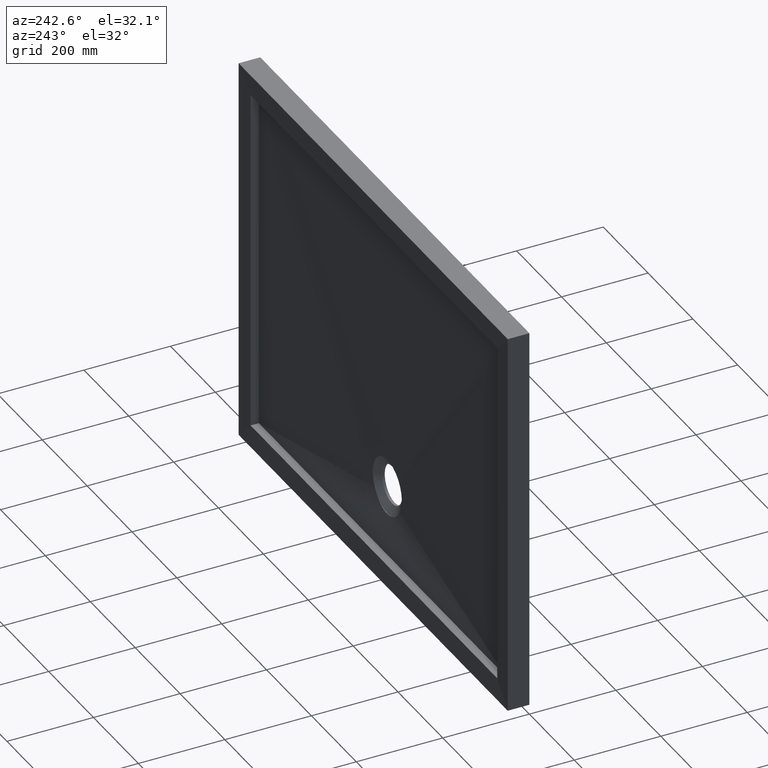
[diagram: clean part render]
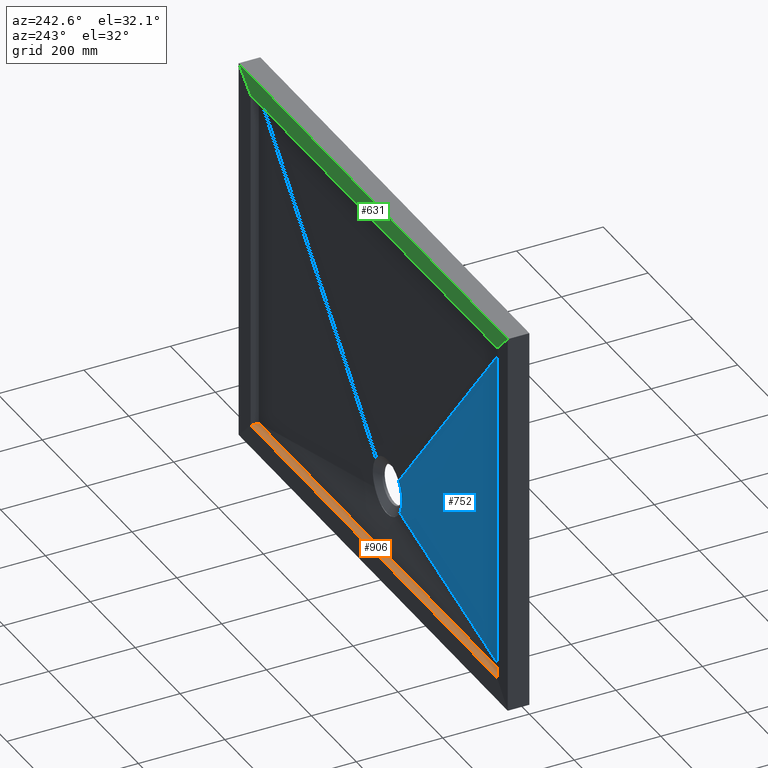
[diagram: same view with three faces highlighted in distinct colors, each labeled with its STEP entity id]
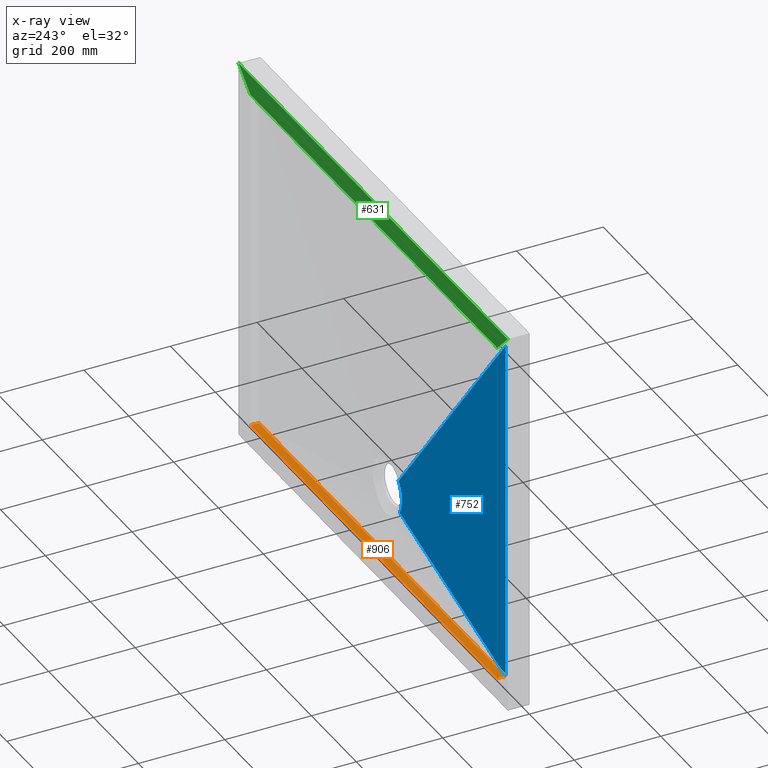
[diagram: x-ray of the same camera — body ghosted, the three highlighted faces saturated]
A machine part, auxiliary view with three faces highlighted in distinct colors.
The next image is the same camera in x-ray (body ghosted, the three faces saturated) — at least one of them is partly hidden behind the body in this view.
Their STEP definitions:

[orange] entity #906 — the highlighted planar face has unit normal (-0, 0, -1).
#41 = VECTOR ( 'NONE', #803, 1000.000000000000000 ) ;
#49 = ORIENTED_EDGE ( 'NONE', *, *, #1020, .T. ) ;
#60 = CARTESIAN_POINT ( 'NONE',  ( -549.9999999999997700, 48.25745360236166400, -400.0000000000000600 ) ) ;
#65 = VERTEX_POINT ( 'NONE', #918 ) ;
#79 = CARTESIAN_POINT ( 'NONE',  ( -183.3333333333332300, 28.99999999999991500, -400.0000000000000600 ) ) ;
#115 = FACE_OUTER_BOUND ( 'NONE', #347, .T. ) ;
#145 = DIRECTION ( 'NONE',  ( -0.0000000000000000000, 0.0000000000000000000, -1.000000000000000000 ) ) ;
#147 = DIRECTION ( 'NONE',  ( -1.000000000000000000, 0.0000000000000000000, 0.0000000000000000000 ) ) ;
#148 = PLANE ( 'NONE',  #372 ) ;
#152 = EDGE_CURVE ( 'NONE', #1026, #65, #510, .T. ) ;
#166 = CARTESIAN_POINT ( 'NONE',  ( 550.0000000000000000, -1360.147050873544200, -400.0000000000000600 ) ) ;
#302 = CARTESIAN_POINT ( 'NONE',  ( 550.0000000000000000, 29.00000000000000000, -400.0000000000000600 ) ) ;
#314 = DIRECTION ( 'NONE',  ( -1.000000000000000000, 0.0000000000000000000, 0.0000000000000000000 ) ) ;
#347 = EDGE_LOOP ( 'NONE', ( #789, #49, #958, #882 ) ) ;
#372 = AXIS2_PLACEMENT_3D ( 'NONE', #166, #145, #147 ) ;
#390 = VERTEX_POINT ( 'NONE', #694 ) ;
#399 = CARTESIAN_POINT ( 'NONE',  ( 550.0000000000000000, 29.00000000000000000, -400.0000000000000600 ) ) ;
#415 = CARTESIAN_POINT ( 'NONE',  ( -549.9999999999997700, 48.25745360236166400, -400.0000000000000600 ) ) ;
#447 = EDGE_CURVE ( 'NONE', #390, #950, #663, .T. ) ;
#466 = EDGE_CURVE ( 'NONE', #390, #1026, #557, .T. ) ;
#510 = LINE ( 'NONE', #845, #944 ) ;
#557 = B_SPLINE_CURVE_WITH_KNOTS ( 'NONE', 3,
 ( #680, #79, #874, #302 ),
 .UNSPECIFIED., .F., .F.,
 ( 4, 4 ),
 ( 0.0000000000000000000, 1.000000000000000000 ),
 .UNSPECIFIED. ) ;
#605 = DIRECTION ( 'NONE',  ( -0.0000000000000000000, 1.000000000000000000, -0.0000000000000000000 ) ) ;
#628 = LINE ( 'NONE', #415, #655 ) ;
#655 = VECTOR ( 'NONE', #314, 1000.000000000000000 ) ;
#663 = LINE ( 'NONE', #1043, #41 ) ;
#680 = CARTESIAN_POINT ( 'NONE',  ( -549.9999999999997700, 29.00000000000000000, -400.0000000000000600 ) ) ;
#694 = CARTESIAN_POINT ( 'NONE',  ( -549.9999999999997700, 29.00000000000000000, -400.0000000000000600 ) ) ;
#789 = ORIENTED_EDGE ( 'NONE', *, *, #152, .T. ) ;
#803 = DIRECTION ( 'NONE',  ( -0.0000000000000000000, 1.000000000000000000, -0.0000000000000000000 ) ) ;
#845 = CARTESIAN_POINT ( 'NONE',  ( 550.0000000000000000, -1360.147050873544200, -400.0000000000000600 ) ) ;
#874 = CARTESIAN_POINT ( 'NONE',  ( 183.3333333333334600, 28.99999999999991500, -400.0000000000000600 ) ) ;
#882 = ORIENTED_EDGE ( 'NONE', *, *, #466, .T. ) ;
#906 = ADVANCED_FACE ( 'NONE', ( #115 ), #148, .F. ) ;
#918 = CARTESIAN_POINT ( 'NONE',  ( 550.0000000000000000, 48.25745360236166400, -400.0000000000000600 ) ) ;
#944 = VECTOR ( 'NONE', #605, 1000.000000000000000 ) ;
#950 = VERTEX_POINT ( 'NONE', #60 ) ;
#958 = ORIENTED_EDGE ( 'NONE', *, *, #447, .F. ) ;
#1020 = EDGE_CURVE ( 'NONE', #65, #950, #628, .T. ) ;
#1026 = VERTEX_POINT ( 'NONE', #399 ) ;
#1043 = CARTESIAN_POINT ( 'NONE',  ( -549.9999999999997700, -1360.147050873544200, -400.0000000000000600 ) ) ;

[blue] entity #752 — the highlighted face is a freeform B-spline surface patch.
#13 = VERTEX_POINT ( 'NONE', #29 ) ;
#27 = CARTESIAN_POINT ( 'NONE',  ( -64.32482193329538200, 17.32037914802593500, -243.9066366249827200 ) ) ;
#28 = B_SPLINE_SURFACE_WITH_KNOTS ( 'NONE', 3, 1, ( 
 ( #742, #312 ),
 ( #998, #519 ),
 ( #488, #107 ),
 ( #875, #199 ),
 ( #822, #473 ),
 ( #883, #212 ),
 ( #418, #1031 ),
 ( #92, #118 ),
 ( #520, #98 ),
 ( #124, #102 ),
 ( #106, #96 ),
 ( #104, #86 ),
 ( #257, #487 ),
 ( #417, #395 ),
 ( #485, #472 ),
 ( #493, #420 ),
 ( #452, #469 ),
 ( #578, #197 ) ),
 .UNSPECIFIED., .F., .F., .F.,
 ( 4, 2, 2, 2, 2, 2, 2, 2, 4 ),
 ( 2, 2 ),
 ( 0.0000000000000000000, 0.1249999999999993900, 0.2499999999999987800, 0.3749999999999981700, 0.5000000000000000000, 0.6249999999999981100, 0.7499999999999987800, 0.8749999999999993300, 1.000000000000000000 ),
 ( 0.0000000000000000000, 1.000000000000000000 ),
 .UNSPECIFIED. ) ;
#29 = CARTESIAN_POINT ( 'NONE',  ( -49.97414197186390800, 17.20588167449278000, -209.3659679230751200 ) ) ;
#40 = CARTESIAN_POINT ( 'NONE',  ( -64.70193363618858500, 17.33240233402368300, -248.8395760038940800 ) ) ;
#64 = CARTESIAN_POINT ( 'NONE',  ( -549.9999999999997700, 28.99999999999991500, 399.9999999999998300 ) ) ;
#66 = CARTESIAN_POINT ( 'NONE',  ( -62.23675064629844700, 17.28734786101771100, -232.5612399121918400 ) ) ;
#85 = CARTESIAN_POINT ( 'NONE',  ( -63.34827688409849600, 17.30218230947526700, -237.3609135749853700 ) ) ;
#86 = CARTESIAN_POINT ( 'NONE',  ( -49.88677260043038300, 17.00000000000000400, -260.9476009419062200 ) ) ;
#92 = CARTESIAN_POINT ( 'NONE',  ( -549.9999999999997700, 28.99999999999999600, 66.66666666666617400 ) ) ;
#96 = CARTESIAN_POINT ( 'NONE',  ( -50.77383693810917000, 17.00000000000000400, -255.5278865267459600 ) ) ;
#98 = CARTESIAN_POINT ( 'NONE',  ( -51.00000000000005700, 17.00000000000000400, -247.2359375844686200 ) ) ;
#102 = CARTESIAN_POINT ( 'NONE',  ( -51.00000000000005700, 17.00000000000000700, -252.7640624155315000 ) ) ;
#104 = CARTESIAN_POINT ( 'NONE',  ( -549.9999999999997700, 29.00000000000000000, -133.3333333333332900 ) ) ;
#106 = CARTESIAN_POINT ( 'NONE',  ( -549.9999999999997700, 29.00000000000000000, -66.66666666666706900 ) ) ;
#107 = CARTESIAN_POINT ( 'NONE',  ( -44.07242030978315500, 17.00000000000000000, -224.2041081364448900 ) ) ;
#114 = CARTESIAN_POINT ( 'NONE',  ( -63.65855429001973700, 17.30697968857333200, -238.9792170018536100 ) ) ;
#118 = CARTESIAN_POINT ( 'NONE',  ( -50.77383693810917000, 17.00000000000000000, -244.4721134732543000 ) ) ;
#124 = CARTESIAN_POINT ( 'NONE',  ( -549.9999999999997700, 28.99999999999999600, -33.33333333333428100 ) ) ;
#132 = CARTESIAN_POINT ( 'NONE',  ( -549.9999999999997700, 28.99999999999991500, 399.9999999999998300 ) ) ;
#165 = EDGE_CURVE ( 'NONE', #913, #13, #254, .T. ) ;
#179 = CARTESIAN_POINT ( 'NONE',  ( -55.37302685557201400, 17.33322526307307900, -283.3290992779088200 ) ) ;
#194 = ORIENTED_EDGE ( 'NONE', *, *, #600, .F. ) ;
#197 = CARTESIAN_POINT ( 'NONE',  ( -41.24554029946262500, 17.00000000000000000, -279.9967565814275200 ) ) ;
#199 = CARTESIAN_POINT ( 'NONE',  ( -46.47463289745760300, 16.99999999999999600, -228.8360030701909400 ) ) ;
#210 = CARTESIAN_POINT ( 'NONE',  ( -549.9999999999997700, 28.99999999999991500, -133.3333333333334600 ) ) ;
#212 = CARTESIAN_POINT ( 'NONE',  ( -49.22608906524272500, 16.99999999999999300, -236.3969223407705400 ) ) ;
#228 = CARTESIAN_POINT ( 'NONE',  ( -64.09496804721597100, 17.34796107167472100, -258.6520265255520600 ) ) ;
#244 = CARTESIAN_POINT ( 'NONE',  ( -52.08283375141631700, 17.21508040174697000, -211.9341071810150400 ) ) ;
#254 = LINE ( 'NONE', #848, #573 ) ;
#257 = CARTESIAN_POINT ( 'NONE',  ( -549.9999999999997700, 29.00000000000000000, -166.6666666666666900 ) ) ;
#269 = CARTESIAN_POINT ( 'NONE',  ( -53.97664712434107800, 17.22481297455127700, -214.6417034828458300 ) ) ;
#297 = CARTESIAN_POINT ( 'NONE',  ( -61.07339910924413600, 17.35155785107215500, -271.4914272628792600 ) ) ;
#301 = CARTESIAN_POINT ( 'NONE',  ( -63.05546787911839600, 17.35190100982187300, -264.3483599652245200 ) ) ;
#307 = CARTESIAN_POINT ( 'NONE',  ( -64.29055245935914800, 17.34604687289079200, -257.0203241834144000 ) ) ;
#312 = CARTESIAN_POINT ( 'NONE',  ( -41.24554029946264000, 17.00000000000000000, -220.0032434185725900 ) ) ;
#327 = B_SPLINE_CURVE_WITH_KNOTS ( 'NONE', 3,
 ( #783, #759, #727, #297, #635, #301, #940, #568, #501, #228, #307, #457, #40, #567, #27, #398, #582, #114, #85, #66, #618, #468, #506, #935, #426, #465, #503, #269, #244, #715 ),
 .UNSPECIFIED., .F., .F.,
 ( 4, 2, 2, 2, 2, 2, 2, 2, 2, 2, 2, 2, 2, 2, 4 ),
 ( 0.0000000000000000000, 0.009828433740350849300, 0.01965686748070169900, 0.02211397591578944500, 0.02457108435087719200, 0.02948530122105268900, 0.03931373496140385500, 0.04177084339649166800, 0.04422795183157946600, 0.04914216870175518200, 0.05897060244210652200, 0.06388481931228215400, 0.06634192774737000800, 0.06879903618245784800, 0.07862746992280914000 ),
 .UNSPECIFIED. ) ;
#390 = VERTEX_POINT ( 'NONE', #694 ) ;
#395 = CARTESIAN_POINT ( 'NONE',  ( -47.51983813295270700, 17.00000000000000000, -268.7114016118574700 ) ) ;
#398 = CARTESIAN_POINT ( 'NONE',  ( -64.14000625714206200, 17.31607232665064400, -242.2600031760331100 ) ) ;
#417 = CARTESIAN_POINT ( 'NONE',  ( -549.9999999999997700, 29.00000000000000000, -233.3333333333334300 ) ) ;
#418 = CARTESIAN_POINT ( 'NONE',  ( -549.9999999999997700, 28.99999999999999600, 133.3333333333332600 ) ) ;
#420 = CARTESIAN_POINT ( 'NONE',  ( -44.07242030978316900, 16.99999999999999600, -275.7958918635552500 ) ) ;
#423 = EDGE_CURVE ( 'NONE', #689, #13, #327, .T. ) ;
#426 = CARTESIAN_POINT ( 'NONE',  ( -57.27451353056520100, 17.24530061336703200, -220.3747534254069600 ) ) ;
#452 = CARTESIAN_POINT ( 'NONE',  ( -549.9999999999997700, 29.00000000000000000, -366.6666666666668000 ) ) ;
#457 = CARTESIAN_POINT ( 'NONE',  ( -64.68808440605657500, 17.33894215715818300, -252.1177903111731400 ) ) ;
#465 = CARTESIAN_POINT ( 'NONE',  ( -56.48676202317378200, 17.24011055195315800, -218.9176625974593500 ) ) ;
#468 = CARTESIAN_POINT ( 'NONE',  ( -59.42478530296410400, 17.26110423535304200, -224.8550681240269300 ) ) ;
#469 = CARTESIAN_POINT ( 'NONE',  ( -42.71581056973290900, 17.00000000000000000, -277.9751349598059300 ) ) ;
#472 = CARTESIAN_POINT ( 'NONE',  ( -46.47463289745761000, 17.00000000000000400, -271.1639969298094000 ) ) ;
#473 = CARTESIAN_POINT ( 'NONE',  ( -47.51983813295270000, 16.99999999999999600, -231.2885983881429000 ) ) ;
#474 = ORIENTED_EDGE ( 'NONE', *, *, #644, .T. ) ;
#477 = CARTESIAN_POINT ( 'NONE',  ( -549.9999999999997700, 28.99999999999991500, 133.3333333333332600 ) ) ;
#485 = CARTESIAN_POINT ( 'NONE',  ( -549.9999999999997700, 29.00000000000000000, -266.6666666666668000 ) ) ;
#487 = CARTESIAN_POINT ( 'NONE',  ( -49.22608906524272500, 17.00000000000000000, -263.6030776592296000 ) ) ;
#488 = CARTESIAN_POINT ( 'NONE',  ( -549.9999999999997700, 29.00000000000000000, 333.3333333333329200 ) ) ;
#493 = CARTESIAN_POINT ( 'NONE',  ( -549.9999999999997700, 29.00000000000000000, -333.3333333333334800 ) ) ;
#497 = ORIENTED_EDGE ( 'NONE', *, *, #423, .F. ) ;
#501 = CARTESIAN_POINT ( 'NONE',  ( -63.70509915802130500, 17.35008230871626400, -261.0957928565724200 ) ) ;
#503 = CARTESIAN_POINT ( 'NONE',  ( -56.07948981982153200, 17.23753836857273200, -218.1978115763678500 ) ) ;
#506 = CARTESIAN_POINT ( 'NONE',  ( -58.75419683608793500, 17.25581807990698700, -223.3469074419962200 ) ) ;
#519 = CARTESIAN_POINT ( 'NONE',  ( -42.71581056973294500, 17.00000000000000400, -222.0248650401943000 ) ) ;
#520 = CARTESIAN_POINT ( 'NONE',  ( -549.9999999999997700, 28.99999999999999600, 33.33333333333235500 ) ) ;
#535 = VECTOR ( 'NONE', #699, 1000.000000000000200 ) ;
#545 = LINE ( 'NONE', #729, #535 ) ;
#567 = CARTESIAN_POINT ( 'NONE',  ( -64.40100457801054300, 17.32245542385258500, -244.7293164513309900 ) ) ;
#568 = CARTESIAN_POINT ( 'NONE',  ( -63.55904363520611600, 17.35066480234476000, -261.9097497612656300 ) ) ;
#573 = VECTOR ( 'NONE', #800, 1000.000000000000000 ) ;
#578 = CARTESIAN_POINT ( 'NONE',  ( -549.9999999999997700, 29.00000000000000000, -400.0000000000000600 ) ) ;
#582 = CARTESIAN_POINT ( 'NONE',  ( -64.03115429121652400, 17.31383817662481000, -241.4350455889210700 ) ) ;
#600 = EDGE_CURVE ( 'NONE', #913, #390, #753, .T. ) ;
#616 = ORIENTED_EDGE ( 'NONE', *, *, #165, .T. ) ;
#618 = CARTESIAN_POINT ( 'NONE',  ( -61.25589657951211100, 17.27690776154082300, -229.4347733437406300 ) ) ;
#635 = CARTESIAN_POINT ( 'NONE',  ( -62.08791675501191100, 17.35288178826252500, -268.3695830651747700 ) ) ;
#644 = EDGE_CURVE ( 'NONE', #689, #390, #545, .T. ) ;
#689 = VERTEX_POINT ( 'NONE', #179 ) ;
#694 = CARTESIAN_POINT ( 'NONE',  ( -549.9999999999997700, 29.00000000000000000, -400.0000000000000600 ) ) ;
#699 = DIRECTION ( 'NONE',  ( -0.9730342632391871800, 0.02295097553688907000, -0.2295159586705835800 ) ) ;
#715 = CARTESIAN_POINT ( 'NONE',  ( -49.97414197186390800, 17.20588167449278000, -209.3659679230751200 ) ) ;
#727 = CARTESIAN_POINT ( 'NONE',  ( -58.57783112058304900, 17.34510045352812200, -277.5505523187384800 ) ) ;
#729 = CARTESIAN_POINT ( 'NONE',  ( -295.6227701497312000, 23.00000000000000000, -339.9983782907137900 ) ) ;
#732 = FACE_OUTER_BOUND ( 'NONE', #1015, .T. ) ;
#742 = CARTESIAN_POINT ( 'NONE',  ( -549.9999999999997700, 29.00000000000000000, 399.9999999999996600 ) ) ;
#752 = ADVANCED_FACE ( 'NONE', ( #732 ), #28, .F. ) ;
#753 = B_SPLINE_CURVE_WITH_KNOTS ( 'NONE', 3,
 ( #64, #477, #210, #1038 ),
 .UNSPECIFIED., .F., .F.,
 ( 4, 4 ),
 ( 0.0000000000000000000, 1.000000000000000000 ),
 .UNSPECIFIED. ) ;
#759 = CARTESIAN_POINT ( 'NONE',  ( -57.09680468653742500, 17.33996331984924700, -280.4878426318468900 ) ) ;
#783 = CARTESIAN_POINT ( 'NONE',  ( -55.37302685557201400, 17.33322526307307900, -283.3290992779088200 ) ) ;
#800 = DIRECTION ( 'NONE',  ( 0.6342708425847947100, -0.01496055703471900100, -0.7729661570728600900 ) ) ;
#822 = CARTESIAN_POINT ( 'NONE',  ( -549.9999999999997700, 28.99999999999999600, 233.3333333333330000 ) ) ;
#848 = CARTESIAN_POINT ( 'NONE',  ( -295.6227701497312000, 23.00000000000000000, 89.99837829071361700 ) ) ;
#875 = CARTESIAN_POINT ( 'NONE',  ( -549.9999999999997700, 29.00000000000000000, 266.6666666666662900 ) ) ;
#883 = CARTESIAN_POINT ( 'NONE',  ( -549.9999999999997700, 28.99999999999999600, 166.6666666666664900 ) ) ;
#913 = VERTEX_POINT ( 'NONE', #132 ) ;
#935 = CARTESIAN_POINT ( 'NONE',  ( -57.65550092444770100, 17.24792218617910000, -221.1130377847223900 ) ) ;
#940 = CARTESIAN_POINT ( 'NONE',  ( -63.23420241779233200, 17.35157440723989800, -263.5363789603353000 ) ) ;
#998 = CARTESIAN_POINT ( 'NONE',  ( -549.9999999999997700, 29.00000000000000000, 366.6666666666662300 ) ) ;
#1015 = EDGE_LOOP ( 'NONE', ( #497, #474, #194, #616 ) ) ;
#1031 = CARTESIAN_POINT ( 'NONE',  ( -49.88677260043039000, 17.00000000000000000, -239.0523990580939300 ) ) ;
#1038 = CARTESIAN_POINT ( 'NONE',  ( -549.9999999999997700, 29.00000000000000000, -400.0000000000000600 ) ) ;

[green] entity #631 — the highlighted planar face has unit normal (0, 0.9994, -0.0349).
#75 = VECTOR ( 'NONE', #856, 1000.000000000000000 ) ;
#94 = CARTESIAN_POINT ( 'NONE',  ( -549.9999999999997700, 48.25745360236166400, 399.9999999999999400 ) ) ;
#95 = LINE ( 'NONE', #142, #757 ) ;
#116 = CARTESIAN_POINT ( 'NONE',  ( -549.9999999999997700, 50.00000000000000000, 449.9000000000053800 ) ) ;
#134 = CARTESIAN_POINT ( 'NONE',  ( 599.9000000000052100, 50.00000000000000000, 449.9000000000053800 ) ) ;
#141 = DIRECTION ( 'NONE',  ( 1.000000000000000000, 0.0000000000000000000, 0.0000000000000000000 ) ) ;
#142 = CARTESIAN_POINT ( 'NONE',  ( 549.9999999999997700, 48.25745360236166400, 399.9999999999999400 ) ) ;
#157 = EDGE_LOOP ( 'NONE', ( #313, #862, #880, #650 ) ) ;
#162 = CARTESIAN_POINT ( 'NONE',  ( -599.9000000000052100, 50.00000000000000000, 449.9000000000053800 ) ) ;
#224 = LINE ( 'NONE', #1007, #335 ) ;
#313 = ORIENTED_EDGE ( 'NONE', *, *, #421, .T. ) ;
#335 = VECTOR ( 'NONE', #981, 1000.000000000000100 ) ;
#343 = CARTESIAN_POINT ( 'NONE',  ( -549.9999999999997700, 48.25745360236166400, 399.9999999999999400 ) ) ;
#366 = VERTEX_POINT ( 'NONE', #134 ) ;
#421 = EDGE_CURVE ( 'NONE', #972, #901, #224, .T. ) ;
#445 = DIRECTION ( 'NONE',  ( -1.000000000000000000, 0.0000000000000000000, 0.0000000000000000000 ) ) ;
#450 = DIRECTION ( 'NONE',  ( -1.000000000000000000, 0.0000000000000000000, 0.0000000000000000000 ) ) ;
#538 = LINE ( 'NONE', #968, #75 ) ;
#580 = DIRECTION ( 'NONE',  ( 0.0000000000000000000, 0.9993908270190957600, -0.03489949670249969900 ) ) ;
#599 = EDGE_CURVE ( 'NONE', #366, #669, #538, .T. ) ;
#603 = PLANE ( 'NONE',  #764 ) ;
#631 = ADVANCED_FACE ( 'NONE', ( #639 ), #603, .T. ) ;
#639 = FACE_OUTER_BOUND ( 'NONE', #157, .T. ) ;
#650 = ORIENTED_EDGE ( 'NONE', *, *, #916, .F. ) ;
#669 = VERTEX_POINT ( 'NONE', #769 ) ;
#757 = VECTOR ( 'NONE', #141, 1000.000000000000000 ) ;
#764 = AXIS2_PLACEMENT_3D ( 'NONE', #94, #580, #450 ) ;
#769 = CARTESIAN_POINT ( 'NONE',  ( 549.9999999999997700, 48.25745360236166400, 399.9999999999999400 ) ) ;
#825 = LINE ( 'NONE', #116, #838 ) ;
#838 = VECTOR ( 'NONE', #445, 1000.000000000000000 ) ;
#856 = DIRECTION ( 'NONE',  ( -0.7068913075831637600, -0.02468518840783091500, -0.7068913075831636500 ) ) ;
#862 = ORIENTED_EDGE ( 'NONE', *, *, #938, .F. ) ;
#880 = ORIENTED_EDGE ( 'NONE', *, *, #599, .T. ) ;
#901 = VERTEX_POINT ( 'NONE', #162 ) ;
#916 = EDGE_CURVE ( 'NONE', #972, #669, #95, .T. ) ;
#938 = EDGE_CURVE ( 'NONE', #366, #901, #825, .T. ) ;
#968 = CARTESIAN_POINT ( 'NONE',  ( 0.3351471897015123600, 29.06273397965849300, -149.6648528102983600 ) ) ;
#972 = VERTEX_POINT ( 'NONE', #343 ) ;
#981 = DIRECTION ( 'NONE',  ( -0.7068913075831636500, 0.02468518840783090800, 0.7068913075831636500 ) ) ;
#1007 = CARTESIAN_POINT ( 'NONE',  ( -549.9999999999997700, 48.25745360236166400, 399.9999999999999400 ) ) ;